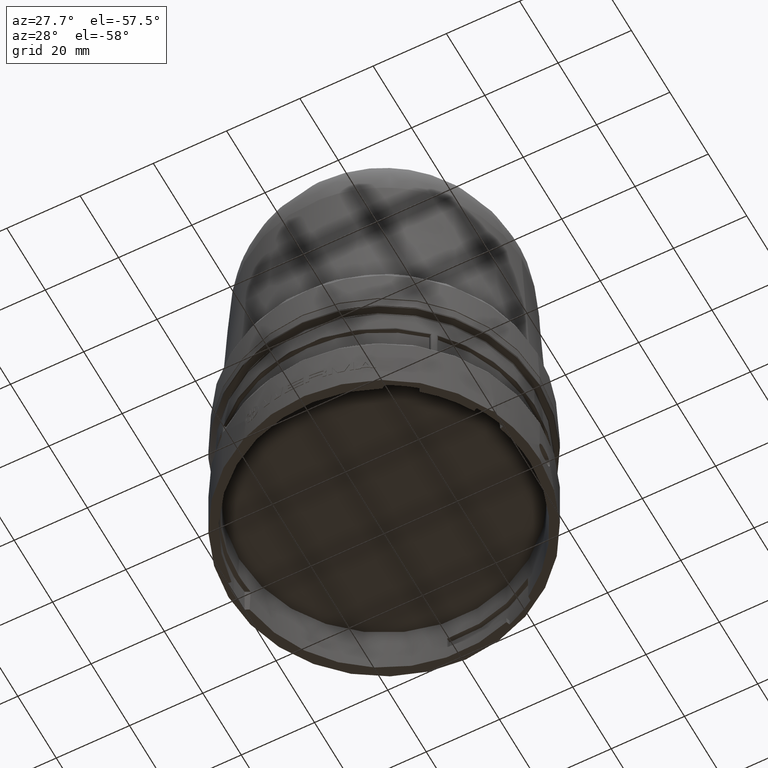
[diagram: clean part render]
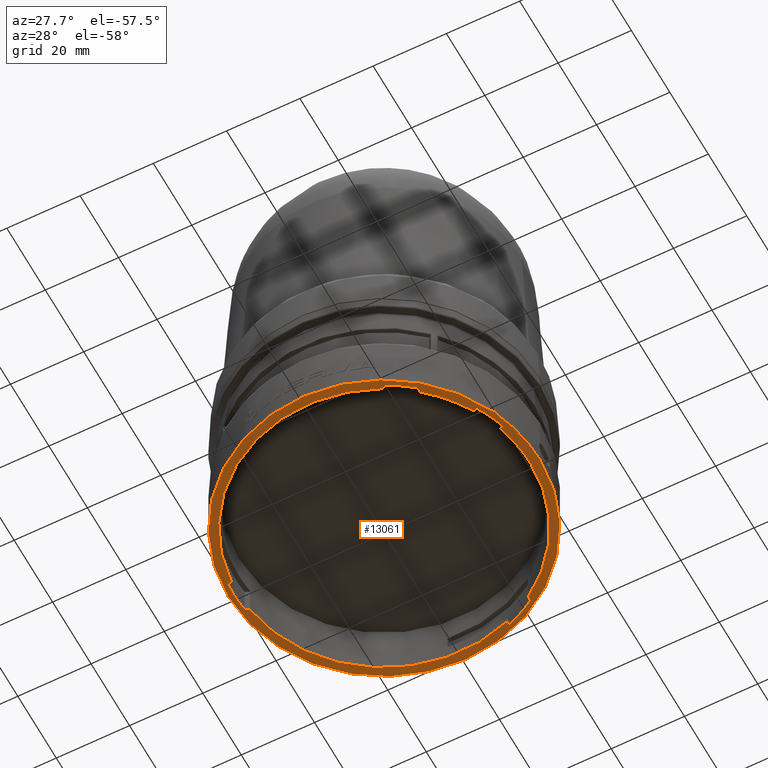
[diagram: same view with one face highlighted and labeled with its STEP entity id]
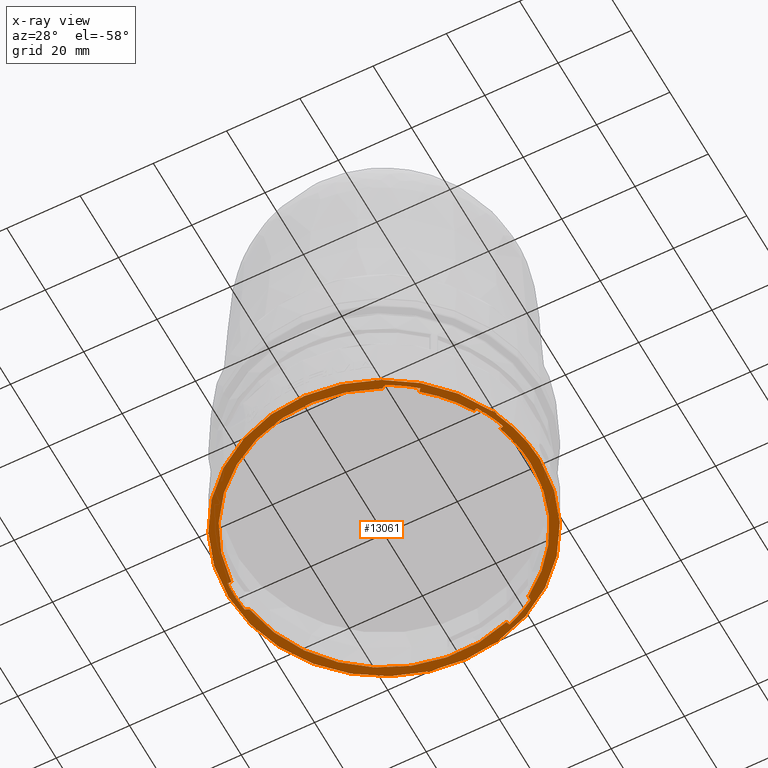
[diagram: x-ray of the same camera — body ghosted, the highlighted face saturated]
A machine part, auxiliary view. The second image highlights one B-rep face of the part: STEP entity #13061.
The next image is the same camera in x-ray: the body ghosted, the highlighted face saturated — about 0% of this face is hidden behind the body in this view.
In plain terms, the highlighted planar face has unit normal (0, 0, -1).
Its self-contained STEP definition (entity closure, byte-faithful):
#115 = VECTOR ( 'NONE', #1260, 39.37007874015748143 ) ;
#143 = CIRCLE ( 'NONE', #9652, 1.574803149606299524 ) ;
#200 = AXIS2_PLACEMENT_3D ( 'NONE', #9744, #14347, #8497 ) ;
#212 = VERTEX_POINT ( 'NONE', #2949 ) ;
#281 = VECTOR ( 'NONE', #1316, 39.37007874015748143 ) ;
#572 = DIRECTION ( 'NONE',  ( -1.000000000000000000, -8.881784197001253901E-15, 0.0000000000000000000 ) ) ;
#596 = VERTEX_POINT ( 'NONE', #3965 ) ;
#700 = DIRECTION ( 'NONE',  ( -1.000000000000000000, 0.0000000000000000000, 0.0000000000000000000 ) ) ;
#701 = ORIENTED_EDGE ( 'NONE', *, *, #13063, .F. ) ;
#814 = CARTESIAN_POINT ( 'NONE',  ( 0.8553814895102913596, 1.368896533165885776, 2.731847993664263218E-16 ) ) ;
#828 = CARTESIAN_POINT ( 'NONE',  ( 1.373471515691444766, -0.7704420520676557027, -6.829619984160658046E-17 ) ) ;
#929 = EDGE_CURVE ( 'NONE', #10151, #12459, #4048, .T. ) ;
#969 = VERTEX_POINT ( 'NONE', #8887 ) ;
#1038 = CARTESIAN_POINT ( 'NONE',  ( 1.410738673359617001, -0.7844590028119248215, -2.285832457113791708E-15 ) ) ;
#1047 = CIRCLE ( 'NONE', #4022, 1.574803149606299524 ) ;
#1072 = VECTOR ( 'NONE', #13029, 39.37007874015748854 ) ;
#1088 = EDGE_CURVE ( 'NONE', #6012, #14734, #4575, .T. ) ;
#1144 = EDGE_CURVE ( 'NONE', #969, #5908, #7092, .T. ) ;
#1260 = DIRECTION ( 'NONE',  ( -0.8987940462991671486, -0.4383711467890770153, 0.0000000000000000000 ) ) ;
#1316 = DIRECTION ( 'NONE',  ( 0.8746197071393954081, -0.4848096202463377802, 0.0000000000000000000 ) ) ;
#1370 = ORIENTED_EDGE ( 'NONE', *, *, #5977, .T. ) ;
#1392 = EDGE_CURVE ( 'NONE', #212, #4257, #10983, .T. ) ;
#1469 = CIRCLE ( 'NONE', #13457, 1.614173228346456712 ) ;
#1556 = AXIS2_PLACEMENT_3D ( 'NONE', #10850, #4890, #9676 ) ;
#1570 = CARTESIAN_POINT ( 'NONE',  ( 0.0000000000000000000, 0.0000000000000000000, 2.731847993664263218E-16 ) ) ;
#1638 = CIRCLE ( 'NONE', #2630, 1.574803149606299524 ) ;
#1795 = VERTEX_POINT ( 'NONE', #4979 ) ;
#1812 = LINE ( 'NONE', #6680, #3857 ) ;
#1914 = CARTESIAN_POINT ( 'NONE',  ( 0.5386143989380623998, 1.479830898875446277, 0.0000000000000000000 ) ) ;
#2235 = DIRECTION ( 'NONE',  ( -1.000000000000000000, 3.552713678800500929E-15, 0.0000000000000000000 ) ) ;
#2239 = ORIENTED_EDGE ( 'NONE', *, *, #14564, .T. ) ;
#2291 = CARTESIAN_POINT ( 'NONE',  ( 0.8553814895102911375, 1.368896533165884888, 2.731847993664263218E-16 ) ) ;
#2334 = LINE ( 'NONE', #14231, #281 ) ;
#2434 = CARTESIAN_POINT ( 'NONE',  ( -1.602141425877724457, 0.1967182314807499888, 2.731847993664263218E-16 ) ) ;
#2455 = DIRECTION ( 'NONE',  ( -1.000000000000000000, 0.0000000000000000000, -0.0000000000000000000 ) ) ;
#2471 = EDGE_CURVE ( 'NONE', #14035, #596, #6807, .T. ) ;
#2630 = AXIS2_PLACEMENT_3D ( 'NONE', #9304, #8141, #10639 ) ;
#2662 = VERTEX_POINT ( 'NONE', #4077 ) ;
#2680 = ORIENTED_EDGE ( 'NONE', *, *, #2471, .T. ) ;
#2745 = AXIS2_PLACEMENT_3D ( 'NONE', #15010, #4299, #700 ) ;
#2779 = AXIS2_PLACEMENT_3D ( 'NONE', #11848, #10674, #4643 ) ;
#2829 = LINE ( 'NONE', #11441, #7707 ) ;
#2847 = DIRECTION ( 'NONE',  ( -0.0000000000000000000, -0.0000000000000000000, 1.000000000000000000 ) ) ;
#2848 = CIRCLE ( 'NONE', #4356, 1.673228346456693050 ) ;
#2924 = EDGE_CURVE ( 'NONE', #4437, #10895, #6079, .T. ) ;
#2943 = AXIS2_PLACEMENT_3D ( 'NONE', #7680, #11200, #9951 ) ;
#2949 = CARTESIAN_POINT ( 'NONE',  ( 1.411746041506397376, -0.7826418883508855506, -5.484986158795293152E-16 ) ) ;
#3042 = CARTESIAN_POINT ( 'NONE',  ( 1.522962874161914559, -0.6930203339806708662, 0.0000000000000000000 ) ) ;
#3253 = B_SPLINE_CURVE_WITH_KNOTS ( 'NONE', 3,
 ( #14769, #12430, #13753, #14920, #7593, #5386 ),
 .UNSPECIFIED., .F., .F.,
 ( 4, 2, 4 ),
 ( 0.0000000000000000000, 0.0001560708201879568461, 0.0003121416403759136923 ),
 .UNSPECIFIED. ) ;
#3383 = DIRECTION ( 'NONE',  ( -0.0000000000000000000, -0.0000000000000000000, 1.000000000000000000 ) ) ;
#3384 = AXIS2_PLACEMENT_3D ( 'NONE', #4168, #6521, #572 ) ;
#3409 = B_SPLINE_CURVE_WITH_KNOTS ( 'NONE', 3,
 ( #13012, #11766, #12854, #6922, #1038, #11683 ),
 .UNSPECIFIED., .F., .F.,
 ( 4, 2, 4 ),
 ( 5.157703690291707425E-17, 0.0001560683531307826828, 0.0003121367062615137576 ),
 .UNSPECIFIED. ) ;
#3492 = ORIENTED_EDGE ( 'NONE', *, *, #11949, .T. ) ;
#3535 = LINE ( 'NONE', #2434, #115 ) ;
#3800 = CARTESIAN_POINT ( 'NONE',  ( -1.614173228346456712, 0.0000000000000000000, 2.731847993664263218E-16 ) ) ;
#3857 = VECTOR ( 'NONE', #10353, 39.37007874015747433 ) ;
#3964 = EDGE_CURVE ( 'NONE', #4999, #212, #3409, .T. ) ;
#3965 = CARTESIAN_POINT ( 'NONE',  ( 1.533716769592909923, -0.6883444071682388588, 1.541886752835592707E-16 ) ) ;
#4022 = AXIS2_PLACEMENT_3D ( 'NONE', #6117, #10889, #15338 ) ;
#4048 = CIRCLE ( 'NONE', #1556, 1.673228346456693050 ) ;
#4077 = CARTESIAN_POINT ( 'NONE',  ( 0.7578084281189573224, -1.425230366425827233, 2.731847993664263218E-16 ) ) ;
#4118 = DIRECTION ( 'NONE',  ( -0.0000000000000000000, -0.0000000000000000000, 1.000000000000000000 ) ) ;
#4129 = LINE ( 'NONE', #6332, #4135 ) ;
#4135 = VECTOR ( 'NONE', #9065, 39.37007874015748854 ) ;
#4168 = CARTESIAN_POINT ( 'NONE',  ( 0.0000000000000000000, 0.0000000000000000000, 2.731847993664263218E-16 ) ) ;
#4257 = VERTEX_POINT ( 'NONE', #15325 ) ;
#4299 = DIRECTION ( 'NONE',  ( -0.0000000000000000000, -0.0000000000000000000, 1.000000000000000000 ) ) ;
#4356 = AXIS2_PLACEMENT_3D ( 'NONE', #8170, #3383, #14251 ) ;
#4385 = ORIENTED_EDGE ( 'NONE', *, *, #9979, .T. ) ;
#4418 = CARTESIAN_POINT ( 'NONE',  ( 0.8562051308038146624, 1.321710155062426617, -7.000360483764674127E-16 ) ) ;
#4437 = VERTEX_POINT ( 'NONE', #6102 ) ;
#4509 = ORIENTED_EDGE ( 'NONE', *, *, #10220, .T. ) ;
#4575 = LINE ( 'NONE', #6858, #15300 ) ;
#4643 = DIRECTION ( 'NONE',  ( 1.000000000000000000, 0.0000000000000000000, 0.0000000000000000000 ) ) ;
#4890 = DIRECTION ( 'NONE',  ( -0.0000000000000000000, -0.0000000000000000000, 1.000000000000000000 ) ) ;
#4910 = CARTESIAN_POINT ( 'NONE',  ( 0.7165320053220229912, -1.402350471657895170, -5.569593536414829134E-16 ) ) ;
#4927 = CARTESIAN_POINT ( 'NONE',  ( 1.530159211614954051, -0.4887970320560448001, -1.153086126488345522E-15 ) ) ;
#4979 = CARTESIAN_POINT ( 'NONE',  ( -1.568810548175977537, -0.1372531381852872268, 1.536664496436148184E-16 ) ) ;
#4999 = VERTEX_POINT ( 'NONE', #13727 ) ;
#5081 = AXIS2_PLACEMENT_3D ( 'NONE', #8824, #4118, #13660 ) ;
#5120 = CARTESIAN_POINT ( 'NONE',  ( -1.574803149606299302, 0.0000000000000000000, 3.083773505671185415E-16 ) ) ;
#5340 = DIRECTION ( 'NONE',  ( -0.9510565162951533091, 0.3090169943749480064, 0.0000000000000000000 ) ) ;
#5386 = CARTESIAN_POINT ( 'NONE',  ( 1.530159211614954051, -0.4887970320560448001, -1.153086126488345522E-15 ) ) ;
#5477 = ORIENTED_EDGE ( 'NONE', *, *, #12489, .T. ) ;
#5486 = EDGE_CURVE ( 'NONE', #12459, #596, #4129, .T. ) ;
#5695 = EDGE_CURVE ( 'NONE', #5908, #6263, #1638, .T. ) ;
#5816 = DIRECTION ( 'NONE',  ( -1.065814103640150279E-14, 1.000000000000000000, -5.615373423607850418E-17 ) ) ;
#5908 = VERTEX_POINT ( 'NONE', #1914 ) ;
#5951 = VERTEX_POINT ( 'NONE', #828 ) ;
#5956 = CIRCLE ( 'NONE', #200, 1.614173228346456712 ) ;
#5977 = EDGE_CURVE ( 'NONE', #14734, #5951, #143, .T. ) ;
#5997 = ORIENTED_EDGE ( 'NONE', *, *, #11264, .T. ) ;
#6012 = VERTEX_POINT ( 'NONE', #9590 ) ;
#6052 = EDGE_CURVE ( 'NONE', #6243, #969, #14377, .T. ) ;
#6079 = CIRCLE ( 'NONE', #5081, 1.614173228346456712 ) ;
#6102 = CARTESIAN_POINT ( 'NONE',  ( -1.602141425877724679, 0.1967182314807499055, 2.731847993664263218E-16 ) ) ;
#6117 = CARTESIAN_POINT ( 'NONE',  ( 0.0000000000000000000, 0.0000000000000000000, -1.673256896119361147E-15 ) ) ;
#6237 = CARTESIAN_POINT ( 'NONE',  ( 0.0000000000000000000, 0.0000000000000000000, 0.0000000000000000000 ) ) ;
#6243 = VERTEX_POINT ( 'NONE', #2291 ) ;
#6263 = VERTEX_POINT ( 'NONE', #7860 ) ;
#6302 = LINE ( 'NONE', #9900, #6475 ) ;
#6332 = CARTESIAN_POINT ( 'NONE',  ( 1.480932140146421494, -0.7112958172592992456, 0.0000000000000000000 ) ) ;
#6445 = ORIENTED_EDGE ( 'NONE', *, *, #929, .F. ) ;
#6475 = VECTOR ( 'NONE', #8420, 39.37007874015748854 ) ;
#6521 = DIRECTION ( 'NONE',  ( -0.0000000000000000000, -0.0000000000000000000, 1.000000000000000000 ) ) ;
#6606 = LINE ( 'NONE', #814, #6974 ) ;
#6680 = CARTESIAN_POINT ( 'NONE',  ( -1.490370020767177284, -0.1303904812760224574, 2.731847993664263218E-16 ) ) ;
#6686 = VERTEX_POINT ( 'NONE', #4927 ) ;
#6807 = CIRCLE ( 'NONE', #2779, 1.681102362204724532 ) ;
#6858 = CARTESIAN_POINT ( 'NONE',  ( 0.9616507546491536162, -1.146050741674063067, 2.731847993664263218E-16 ) ) ;
#6922 = CARTESIAN_POINT ( 'NONE',  ( 1.409002660570766841, -0.7858303008314833082, -7.031135456535521825E-16 ) ) ;
#6935 = VERTEX_POINT ( 'NONE', #4910 ) ;
#6974 = VECTOR ( 'NONE', #11698, 39.37007874015748143 ) ;
#7000 = CARTESIAN_POINT ( 'NONE',  ( 5.211072302330140817E-35, 1.198464579762326592E-34, -5.579772111894506420E-16 ) ) ;
#7092 = LINE ( 'NONE', #15205, #1072 ) ;
#7231 = ORIENTED_EDGE ( 'NONE', *, *, #1392, .T. ) ;
#7308 = EDGE_LOOP ( 'NONE', ( #2680, #10826, #6445, #7927, #13024, #4385 ) ) ;
#7405 = DIRECTION ( 'NONE',  ( 0.0000000000000000000, 0.0000000000000000000, -1.000000000000000000 ) ) ;
#7593 = CARTESIAN_POINT ( 'NONE',  ( 1.532135478837415743, -0.4894391601147060067, -3.281613060321942746E-15 ) ) ;
#7680 = CARTESIAN_POINT ( 'NONE',  ( 0.0000000000000000000, 0.0000000000000000000, -1.673256896119361147E-15 ) ) ;
#7703 = VERTEX_POINT ( 'NONE', #12919 ) ;
#7707 = VECTOR ( 'NONE', #5340, 39.37007874015748854 ) ;
#7724 = AXIS2_PLACEMENT_3D ( 'NONE', #5120, #7405, #2455 ) ;
#7760 = CIRCLE ( 'NONE', #2745, 1.574803149606299524 ) ;
#7860 = CARTESIAN_POINT ( 'NONE',  ( -1.559724129812271487, 0.2174065290907178372, -4.712466231795820080E-16 ) ) ;
#7927 = ORIENTED_EDGE ( 'NONE', *, *, #8753, .F. ) ;
#7991 = ORIENTED_EDGE ( 'NONE', *, *, #3964, .T. ) ;
#8004 = CARTESIAN_POINT ( 'NONE',  ( -1.673228346456693050, 0.0000000000000000000, 0.0000000000000000000 ) ) ;
#8022 = DIRECTION ( 'NONE',  ( -0.6427876096865391409, 0.7660444431189782355, 0.0000000000000000000 ) ) ;
#8141 = DIRECTION ( 'NONE',  ( -0.0000000000000000000, -0.0000000000000000000, 1.000000000000000000 ) ) ;
#8170 = CARTESIAN_POINT ( 'NONE',  ( 0.0000000000000000000, 0.0000000000000000000, 0.0000000000000000000 ) ) ;
#8238 = AXIS2_PLACEMENT_3D ( 'NONE', #7000, #12769, #5816 ) ;
#8420 = DIRECTION ( 'NONE',  ( -0.8746197071393954081, 0.4848096202463373916, 0.0000000000000000000 ) ) ;
#8497 = DIRECTION ( 'NONE',  ( -1.000000000000000000, -4.440892098500626951E-15, 0.0000000000000000000 ) ) ;
#8517 = ORIENTED_EDGE ( 'NONE', *, *, #15354, .T. ) ;
#8625 = ORIENTED_EDGE ( 'NONE', *, *, #2924, .T. ) ;
#8637 = EDGE_CURVE ( 'NONE', #9752, #1795, #1812, .T. ) ;
#8672 = VERTEX_POINT ( 'NONE', #9182 ) ;
#8753 = EDGE_CURVE ( 'NONE', #11876, #10151, #2848, .T. ) ;
#8768 = EDGE_CURVE ( 'NONE', #6263, #4437, #3535, .T. ) ;
#8824 = CARTESIAN_POINT ( 'NONE',  ( 0.0000000000000000000, 0.0000000000000000000, 2.731847993664263218E-16 ) ) ;
#8887 = CARTESIAN_POINT ( 'NONE',  ( 0.5520797589115125081, 1.516826671347332844, 2.731847993664263218E-16 ) ) ;
#8927 = ORIENTED_EDGE ( 'NONE', *, *, #10622, .T. ) ;
#9047 = DIRECTION ( 'NONE',  ( -0.0000000000000000000, -0.0000000000000000000, 1.000000000000000000 ) ) ;
#9065 = DIRECTION ( 'NONE',  ( 0.9170600743851237135, 0.3987490689252468079, 0.0000000000000000000 ) ) ;
#9182 = CARTESIAN_POINT ( 'NONE',  ( 1.545275487137096171, -0.6417295132993418028, 0.0000000000000000000 ) ) ;
#9253 = CARTESIAN_POINT ( 'NONE',  ( 1.574803149606299524, 1.928577636452525103E-16, -1.673256896119361147E-15 ) ) ;
#9304 = CARTESIAN_POINT ( 'NONE',  ( 0.0000000000000000000, 0.0000000000000000000, 0.0000000000000000000 ) ) ;
#9444 = VERTEX_POINT ( 'NONE', #9253 ) ;
#9523 = ORIENTED_EDGE ( 'NONE', *, *, #11812, .T. ) ;
#9590 = CARTESIAN_POINT ( 'NONE',  ( 1.037570551068822677, -1.236528431806225070, 2.731847993664263218E-16 ) ) ;
#9652 = AXIS2_PLACEMENT_3D ( 'NONE', #13968, #9047, #2235 ) ;
#9670 = FACE_OUTER_BOUND ( 'NONE', #7308, .T. ) ;
#9676 = DIRECTION ( 'NONE',  ( -1.000000000000000000, 0.0000000000000000000, 0.0000000000000000000 ) ) ;
#9718 = ORIENTED_EDGE ( 'NONE', *, *, #8768, .T. ) ;
#9744 = CARTESIAN_POINT ( 'NONE',  ( 0.0000000000000000000, 0.0000000000000000000, 2.731847993664263218E-16 ) ) ;
#9752 = VERTEX_POINT ( 'NONE', #10791 ) ;
#9794 = DIRECTION ( 'NONE',  ( -0.0000000000000000000, -0.0000000000000000000, 1.000000000000000000 ) ) ;
#9900 = CARTESIAN_POINT ( 'NONE',  ( 1.384541511913715217, -0.7765782511732081117, -1.365923996832131609E-16 ) ) ;
#9951 = DIRECTION ( 'NONE',  ( -1.000000000000000000, 0.0000000000000000000, 0.0000000000000000000 ) ) ;
#9979 = EDGE_CURVE ( 'NONE', #8672, #14035, #10684, .T. ) ;
#10151 = VERTEX_POINT ( 'NONE', #8004 ) ;
#10216 = CARTESIAN_POINT ( 'NONE',  ( 1.012263952262267175, -1.206369201762170329, 0.0000000000000000000 ) ) ;
#10220 = EDGE_CURVE ( 'NONE', #9444, #14845, #1047, .T. ) ;
#10351 = ORIENTED_EDGE ( 'NONE', *, *, #8637, .T. ) ;
#10353 = DIRECTION ( 'NONE',  ( 0.9961946980917456562, 0.08715574274765787444, 0.0000000000000000000 ) ) ;
#10602 = CARTESIAN_POINT ( 'NONE',  ( 1.549415551834062876, -0.6522396798302395604, 3.083773505671185415E-16 ) ) ;
#10622 = EDGE_CURVE ( 'NONE', #6935, #2662, #2334, .T. ) ;
#10639 = DIRECTION ( 'NONE',  ( -1.000000000000000000, 0.0000000000000000000, 0.0000000000000000000 ) ) ;
#10674 = DIRECTION ( 'NONE',  ( -0.0000000000000000000, -0.0000000000000000000, -1.000000000000000000 ) ) ;
#10684 = LINE ( 'NONE', #10910, #10775 ) ;
#10775 = VECTOR ( 'NONE', #13103, 39.37007874015748854 ) ;
#10791 = CARTESIAN_POINT ( 'NONE',  ( -1.608030811880376776, -0.1406844666399193200, 2.731847993664263218E-16 ) ) ;
#10826 = ORIENTED_EDGE ( 'NONE', *, *, #5486, .F. ) ;
#10850 = CARTESIAN_POINT ( 'NONE',  ( 0.0000000000000000000, 0.0000000000000000000, 0.0000000000000000000 ) ) ;
#10889 = DIRECTION ( 'NONE',  ( -0.0000000000000000000, -0.0000000000000000000, 1.000000000000000000 ) ) ;
#10895 = VERTEX_POINT ( 'NONE', #3800 ) ;
#10910 = CARTESIAN_POINT ( 'NONE',  ( 1.545275487137090620, -0.6417295132993582341, 3.083773505671185415E-16 ) ) ;
#10983 = CIRCLE ( 'NONE', #8238, 1.614173228346456712 ) ;
#11145 = ORIENTED_EDGE ( 'NONE', *, *, #6052, .T. ) ;
#11200 = DIRECTION ( 'NONE',  ( -0.0000000000000000000, -0.0000000000000000000, 1.000000000000000000 ) ) ;
#11264 = EDGE_CURVE ( 'NONE', #1795, #6935, #7760, .T. ) ;
#11441 = CARTESIAN_POINT ( 'NONE',  ( 1.512208419156073180, -0.4829644660231667275, -8.195543980992789655E-16 ) ) ;
#11683 = CARTESIAN_POINT ( 'NONE',  ( 1.411746041506397376, -0.7826418883508855506, -5.484986158795293152E-16 ) ) ;
#11698 = DIRECTION ( 'NONE',  ( -0.01745240643728270327, 0.9998476951563912696, 0.0000000000000000000 ) ) ;
#11766 = CARTESIAN_POINT ( 'NONE',  ( 1.402868016075344171, -0.7867367983947364252, 2.172723796340098406E-15 ) ) ;
#11812 = EDGE_CURVE ( 'NONE', #14845, #6243, #6606, .T. ) ;
#11848 = CARTESIAN_POINT ( 'NONE',  ( 3.296196180640425381E-16, -1.167244286223622245E-16, 3.083773505671185415E-16 ) ) ;
#11876 = VERTEX_POINT ( 'NONE', #15291 ) ;
#11949 = EDGE_CURVE ( 'NONE', #2662, #6012, #5956, .T. ) ;
#12087 = FACE_BOUND ( 'NONE', #12773, .T. ) ;
#12116 = EDGE_CURVE ( 'NONE', #6686, #7703, #2829, .T. ) ;
#12244 = ORIENTED_EDGE ( 'NONE', *, *, #12116, .T. ) ;
#12430 = CARTESIAN_POINT ( 'NONE',  ( 1.535838883545352029, -0.4967478849102912597, 1.056234745444367262E-15 ) ) ;
#12459 = VERTEX_POINT ( 'NONE', #3042 ) ;
#12489 = EDGE_CURVE ( 'NONE', #7703, #9444, #12697, .T. ) ;
#12678 = EDGE_CURVE ( 'NONE', #8672, #11876, #12709, .T. ) ;
#12697 = CIRCLE ( 'NONE', #2943, 1.574803149606299524 ) ;
#12709 = CIRCLE ( 'NONE', #12969, 1.673228346456693050 ) ;
#12769 = DIRECTION ( 'NONE',  ( 2.441633854611449636E-17, 5.615373423607881233E-17, 1.000000000000000000 ) ) ;
#12773 = EDGE_LOOP ( 'NONE', ( #14411, #1370, #701, #7991, #7231, #2239, #12244, #5477, #4509, #9523, #11145, #13817, #15054, #9718, #8625, #8517, #10351, #5997, #8927, #3492 ) ) ;
#12854 = CARTESIAN_POINT ( 'NONE',  ( 1.405064248154352269, -0.7869695622118804135, -7.031135456535522811E-16 ) ) ;
#12919 = CARTESIAN_POINT ( 'NONE',  ( 1.500170967956856449, -0.4790532610360987431, -4.097771990496394828E-16 ) ) ;
#12969 = AXIS2_PLACEMENT_3D ( 'NONE', #6237, #2847, #13351 ) ;
#13012 = CARTESIAN_POINT ( 'NONE',  ( 1.401049591690578078, -0.7857288292156276999, 7.073412906996129656E-16 ) ) ;
#13024 = ORIENTED_EDGE ( 'NONE', *, *, #12678, .F. ) ;
#13029 = DIRECTION ( 'NONE',  ( -0.3420201433256690460, -0.9396926207859082059, 0.0000000000000000000 ) ) ;
#13061 = ADVANCED_FACE ( 'NONE', ( #12087, #9670 ), #13333, .T. ) ;
#13063 = EDGE_CURVE ( 'NONE', #4999, #5951, #6302, .T. ) ;
#13103 = DIRECTION ( 'NONE',  ( 0.3665012267243386579, -0.9304175679820081424, 0.0000000000000000000 ) ) ;
#13333 = PLANE ( 'NONE',  #7724 ) ;
#13351 = DIRECTION ( 'NONE',  ( -1.000000000000000000, 3.552713678800500929E-15, 0.0000000000000000000 ) ) ;
#13457 = AXIS2_PLACEMENT_3D ( 'NONE', #1570, #9794, #13461 ) ;
#13461 = DIRECTION ( 'NONE',  ( -1.000000000000000000, 0.0000000000000000000, 0.0000000000000000000 ) ) ;
#13660 = DIRECTION ( 'NONE',  ( -1.000000000000000000, -1.953992523340275827E-14, 0.0000000000000000000 ) ) ;
#13727 = CARTESIAN_POINT ( 'NONE',  ( 1.401049591690578078, -0.7857288292156276999, 7.073412906996129656E-16 ) ) ;
#13753 = CARTESIAN_POINT ( 'NONE',  ( 1.535658752170968588, -0.4945493476297759261, -2.564418425614134382E-15 ) ) ;
#13817 = ORIENTED_EDGE ( 'NONE', *, *, #1144, .T. ) ;
#13968 = CARTESIAN_POINT ( 'NONE',  ( 0.0000000000000000000, 0.0000000000000000000, 0.0000000000000000000 ) ) ;
#14035 = VERTEX_POINT ( 'NONE', #10602 ) ;
#14231 = CARTESIAN_POINT ( 'NONE',  ( 0.7578084281189566562, -1.425230366425826789, 1.365923996832131609E-16 ) ) ;
#14251 = DIRECTION ( 'NONE',  ( -1.000000000000000000, 0.0000000000000000000, 0.0000000000000000000 ) ) ;
#14347 = DIRECTION ( 'NONE',  ( -0.0000000000000000000, -0.0000000000000000000, 1.000000000000000000 ) ) ;
#14377 = CIRCLE ( 'NONE', #3384, 1.614173228346456712 ) ;
#14411 = ORIENTED_EDGE ( 'NONE', *, *, #1088, .T. ) ;
#14564 = EDGE_CURVE ( 'NONE', #4257, #6686, #3253, .T. ) ;
#14734 = VERTEX_POINT ( 'NONE', #10216 ) ;
#14769 = CARTESIAN_POINT ( 'NONE',  ( 1.535196527219724993, -0.4987252088303936182, 4.067679518738211707E-16 ) ) ;
#14845 = VERTEX_POINT ( 'NONE', #4418 ) ;
#14920 = CARTESIAN_POINT ( 'NONE',  ( 1.533807388841549768, -0.4908895730947052671, -2.564418425614133593E-15 ) ) ;
#15010 = CARTESIAN_POINT ( 'NONE',  ( 0.0000000000000000000, 0.0000000000000000000, 0.0000000000000000000 ) ) ;
#15054 = ORIENTED_EDGE ( 'NONE', *, *, #5695, .T. ) ;
#15205 = CARTESIAN_POINT ( 'NONE',  ( 0.5116836789911575201, 1.405839353931673363, 2.731847993664263218E-16 ) ) ;
#15291 = CARTESIAN_POINT ( 'NONE',  ( 1.673228346456693050, 2.049113738730807505E-16, 0.0000000000000000000 ) ) ;
#15300 = VECTOR ( 'NONE', #8022, 39.37007874015748143 ) ;
#15325 = CARTESIAN_POINT ( 'NONE',  ( 1.535196527219724993, -0.4987252088303936182, 4.067679518738211707E-16 ) ) ;
#15338 = DIRECTION ( 'NONE',  ( -1.000000000000000000, 1.776356839400250465E-15, 0.0000000000000000000 ) ) ;
#15354 = EDGE_CURVE ( 'NONE', #10895, #9752, #1469, .T. ) ;